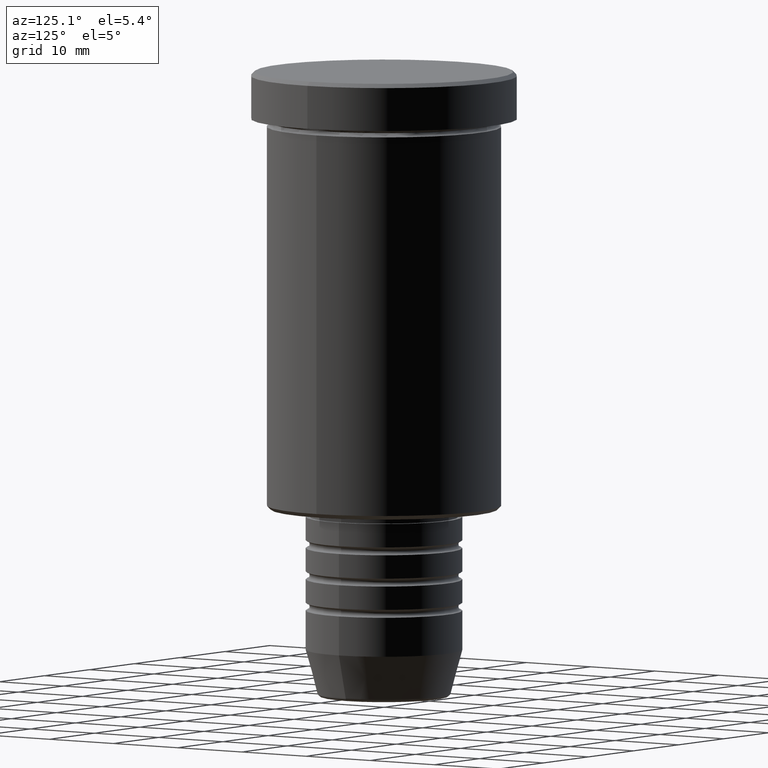
[diagram: clean part render]
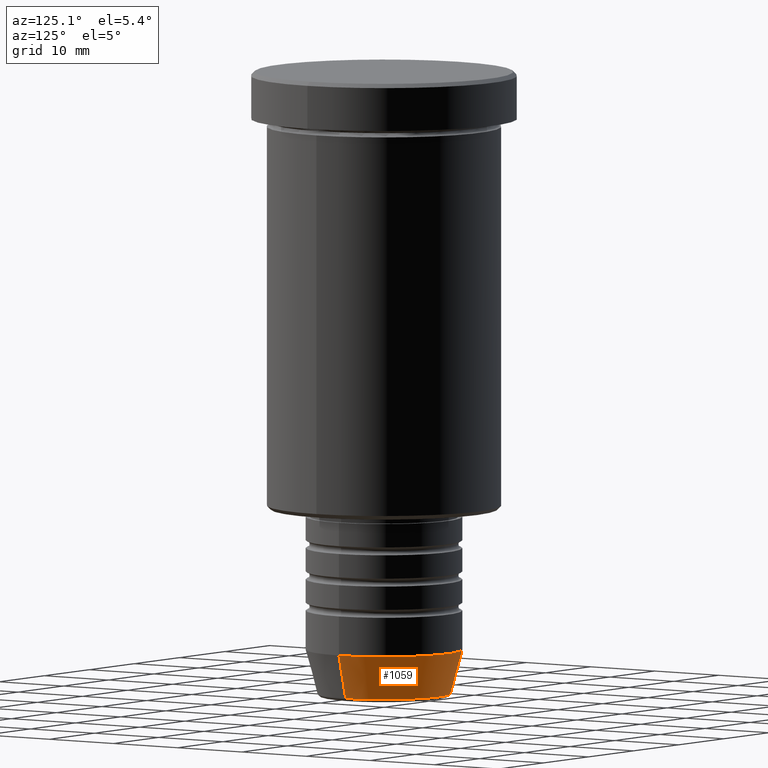
[diagram: same view with one face highlighted and labeled with its STEP entity id]
A machine part, auxiliary view. The second image highlights one B-rep face of the part: STEP entity #1059.
In plain terms, the highlighted conical surface has half-angle 15 deg.
Its self-contained STEP definition (entity closure, byte-faithful):
#16 = CARTESIAN_POINT ( 'NONE',  ( 0.000000000000000000, 0.000000000000000000, -74.00000000000001421 ) ) ;
#30 = DIRECTION ( 'NONE',  ( 1.000000000000000000, 0.000000000000000000, 0.000000000000000000 ) ) ;
#38 = DIRECTION ( 'NONE',  ( 1.000000000000000000, 0.000000000000000000, 0.000000000000000000 ) ) ;
#69 = VERTEX_POINT ( 'NONE', #802 ) ;
#135 = DIRECTION ( 'NONE',  ( 0.2588190451025214056, 0.000000000000000000, 0.9659258262890680902 ) ) ;
#164 = ORIENTED_EDGE ( 'NONE', *, *, #1034, .F. ) ;
#228 = CIRCLE ( 'NONE', #902, 10.00000000000000178 ) ;
#230 = FACE_OUTER_BOUND ( 'NONE', #827, .T. ) ;
#233 = ORIENTED_EDGE ( 'NONE', *, *, #1048, .T. ) ;
#287 = DIRECTION ( 'NONE',  ( -0.000000000000000000, -0.000000000000000000, 1.000000000000000000 ) ) ;
#312 = DIRECTION ( 'NONE',  ( -0.000000000000000000, -0.000000000000000000, 1.000000000000000000 ) ) ;
#323 = ORIENTED_EDGE ( 'NONE', *, *, #514, .F. ) ;
#400 = CARTESIAN_POINT ( 'NONE',  ( -8.491604264568316296, 1.132284198685156781E-15, -79.62940952255127058 ) ) ;
#492 = DIRECTION ( 'NONE',  ( -0.000000000000000000, -0.000000000000000000, 1.000000000000000000 ) ) ;
#514 = EDGE_CURVE ( 'NONE', #1043, #69, #228, .T. ) ;
#532 = CONICAL_SURFACE ( 'NONE', #747, 10.00000000000000178, 0.2617993877991501295 ) ;
#597 = CARTESIAN_POINT ( 'NONE',  ( 0.000000000000000000, 0.000000000000000000, -79.62940952255127058 ) ) ;
#602 = LINE ( 'NONE', #683, #1084 ) ;
#633 = ORIENTED_EDGE ( 'NONE', *, *, #796, .T. ) ;
#658 = DIRECTION ( 'NONE',  ( 1.000000000000000000, 0.000000000000000000, 0.000000000000000000 ) ) ;
#683 = CARTESIAN_POINT ( 'NONE',  ( 10.00000000000000178, 0.000000000000000000, -74.00000000000001421 ) ) ;
#695 = CARTESIAN_POINT ( 'NONE',  ( 8.491604264568316296, 0.000000000000000000, -79.62940952255127058 ) ) ;
#721 = LINE ( 'NONE', #976, #1024 ) ;
#747 = AXIS2_PLACEMENT_3D ( 'NONE', #1134, #492, #30 ) ;
#796 = EDGE_CURVE ( 'NONE', #1146, #69, #721, .T. ) ;
#802 = CARTESIAN_POINT ( 'NONE',  ( -10.00000000000000178, 1.224646799147353454E-15, -74.00000000000001421 ) ) ;
#822 = AXIS2_PLACEMENT_3D ( 'NONE', #597, #312, #38 ) ;
#827 = EDGE_LOOP ( 'NONE', ( #233, #633, #323, #164 ) ) ;
#858 = CARTESIAN_POINT ( 'NONE',  ( 10.00000000000000178, 0.000000000000000000, -74.00000000000001421 ) ) ;
#902 = AXIS2_PLACEMENT_3D ( 'NONE', #16, #287, #658 ) ;
#976 = CARTESIAN_POINT ( 'NONE',  ( -10.00000000000000178, 1.224646799147353454E-15, -74.00000000000001421 ) ) ;
#1024 = VECTOR ( 'NONE', #1080, 1000.000000000000000 ) ;
#1034 = EDGE_CURVE ( 'NONE', #1057, #1043, #602, .T. ) ;
#1043 = VERTEX_POINT ( 'NONE', #858 ) ;
#1044 = CIRCLE ( 'NONE', #822, 8.491604264568316296 ) ;
#1048 = EDGE_CURVE ( 'NONE', #1057, #1146, #1044, .T. ) ;
#1057 = VERTEX_POINT ( 'NONE', #695 ) ;
#1059 = ADVANCED_FACE ( 'NONE', ( #230 ), #532, .T. ) ;
#1080 = DIRECTION ( 'NONE',  ( -0.2588190451025214056, 3.169619151431772953E-17, 0.9659258262890680902 ) ) ;
#1084 = VECTOR ( 'NONE', #135, 1000.000000000000000 ) ;
#1134 = CARTESIAN_POINT ( 'NONE',  ( 0.000000000000000000, 0.000000000000000000, -74.00000000000001421 ) ) ;
#1146 = VERTEX_POINT ( 'NONE', #400 ) ;